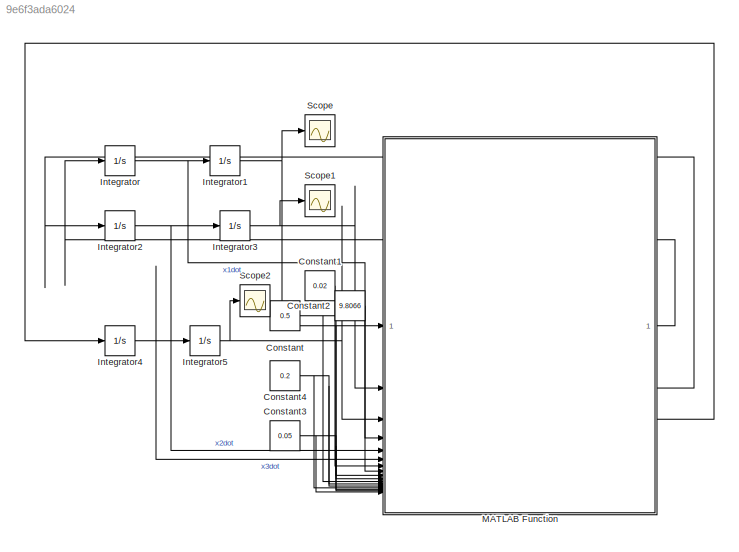
MODEL slx_9e6f3ada6024
KIND model
CONFIG AbsTol = auto
CONFIG EnableMultiTasking = off
CONFIG FixedStep = auto
CONFIG MaxStep = auto
CONFIG MinStep = auto
CONFIG RelTol = 1e-3
CONFIG SampleTimeConstraint = Unconstrained
CONFIG SolverName = VariableStepAuto
CONFIG StartTime = 0.0
CONFIG StopTime = 10.0
BLOCK [Constant] Constant
  Value = 0.5
BLOCK [Constant] Constant1
  Value = 0.02
BLOCK [Constant] Constant2
  Value = 9.8066
BLOCK [Constant] Constant3
  Value = 0.05
BLOCK [Constant] Constant4
  Value = 0.2
BLOCK [Integrator] Integrator
BLOCK [Integrator] Integrator1
BLOCK [Integrator] Integrator2
BLOCK [Integrator] Integrator3
BLOCK [Integrator] Integrator4
BLOCK [Integrator] Integrator5
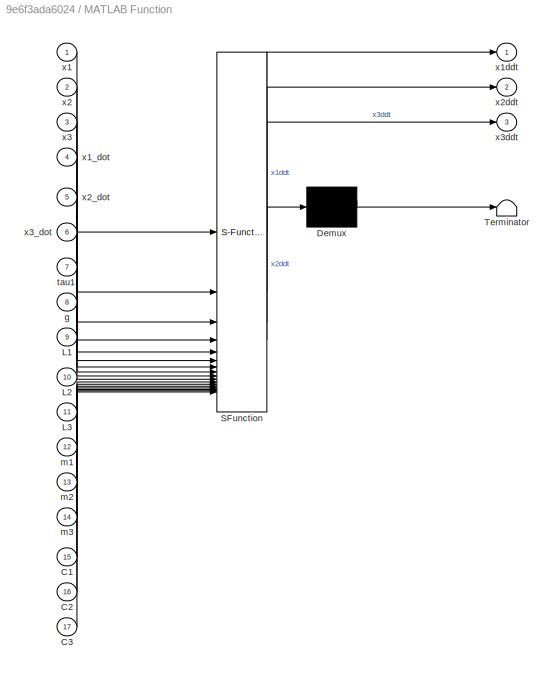
BLOCK [SubSystem] MATLAB Function
  ErrorFcn = Stateflow.Translate.translate
  PermitHierarchicalResolution = ExplicitOnly
  SFBlockType = MATLAB Function
  TreatAsAtomicUnit = on
BLOCK [Demux] MATLAB Function/ Demux 
  Outputs = 1
BLOCK [S-Function] MATLAB Function/ SFunction 
  EnableBusSupport = on
  FunctionName = sf_sfun
  PortCounts = [17 4]
  SFcnIsStateOwnerBlock = off
  SFunctionDeploymentMode = off
  Tag = Stateflow S-Function 2
BLOCK [Terminator] MATLAB Function/ Terminator 
BLOCK [Inport] MATLAB Function/C1
  Port = 15
BLOCK [Inport] MATLAB Function/C2
  Port = 16
BLOCK [Inport] MATLAB Function/C3
  Port = 17
BLOCK [Inport] MATLAB Function/L1
  Port = 9
BLOCK [Inport] MATLAB Function/L2
  Port = 10
BLOCK [Inport] MATLAB Function/L3
  Port = 11
BLOCK [Inport] MATLAB Function/g
  Port = 8
BLOCK [Inport] MATLAB Function/m1
  Port = 12
BLOCK [Inport] MATLAB Function/m2
  Port = 13
BLOCK [Inport] MATLAB Function/m3
  Port = 14
BLOCK [Inport] MATLAB Function/tau1
  Port = 7
BLOCK [Inport] MATLAB Function/x1
BLOCK [Inport] MATLAB Function/x1_dot
  Port = 4
BLOCK [Outport] MATLAB Function/x1ddt
BLOCK [Inport] MATLAB Function/x2
  Port = 2
BLOCK [Inport] MATLAB Function/x2_dot
  Port = 5
BLOCK [Outport] MATLAB Function/x2ddt
  Port = 2
BLOCK [Inport] MATLAB Function/x3
  Port = 3
BLOCK [Inport] MATLAB Function/x3_dot
  Port = 6
BLOCK [Outport] MATLAB Function/x3ddt
  Port = 3
BLOCK [Scope] Scope
  Floating = off
  NumInputPorts = 1
  ScopeSpecificationString = Simulink.scopes.TimeScopeBlockCfg('CurrentConfiguration', extmgr.ConfigurationSet(extmgr.Configuration('Core','General UI',true),extmgr.Configuration('Core','Source UI',true),extmgr.Configuration('Sources','WiredSimulink',true,'DataLoggingSaveFormat','Array','DataLoggingLimitDataPoints',true,'DataLoggingDecimation','1'),extmgr.Configuration('Visuals','Time Domain',true,'SerializedDisplays',{struct...<+1610ch>
BLOCK [Scope] Scope1
  Floating = off
  NumInputPorts = 1
  ScopeSpecificationString = Simulink.scopes.TimeScopeBlockCfg('CurrentConfiguration', extmgr.ConfigurationSet(extmgr.Configuration('Core','General UI',true),extmgr.Configuration('Core','Source UI',true),extmgr.Configuration('Sources','WiredSimulink',true,'DataLoggingSaveFormat','Array','DataLoggingLimitDataPoints',true,'DataLoggingDecimation','1','DataLoggingVariableName','ScopeData1'),extmgr.Configuration('Visuals','Time Do...<+1643ch>
BLOCK [Scope] Scope2
  Floating = off
  NumInputPorts = 1
  ScopeSpecificationString = Simulink.scopes.TimeScopeBlockCfg('CurrentConfiguration', extmgr.ConfigurationSet(extmgr.Configuration('Core','General UI',true),extmgr.Configuration('Core','Source UI',true),extmgr.Configuration('Sources','WiredSimulink',true,'DataLoggingSaveFormat','Array','DataLoggingLimitDataPoints',true,'DataLoggingDecimation','1','DataLoggingVariableName','ScopeData2'),extmgr.Configuration('Visuals','Time Do...<+1641ch>
LINE Constant1:1 -> MATLAB Function:7
LINE Constant2:1 -> MATLAB Function:8
NET Constant3:1 -> MATLAB Function:15, MATLAB Function:16, MATLAB Function:17
NET Constant4:1 -> MATLAB Function:12, MATLAB Function:13, MATLAB Function:14
NET Constant:1 -> MATLAB Function:10, MATLAB Function:11, MATLAB Function:9
NET Integrator1:1 -> MATLAB Function:1, Scope:1
NET Integrator2:1 -> Integrator3:1, MATLAB Function:5
NET Integrator3:1 -> MATLAB Function:2, Scope1:1
NET Integrator4:1 -> Integrator5:1, MATLAB Function:6
NET Integrator5:1 -> MATLAB Function:3, Scope2:1
NET Integrator:1 -> Integrator1:1, MATLAB Function:4
LINE MATLAB Function:1 -> Integrator:1
LINE MATLAB Function:2 -> Integrator2:1
LINE MATLAB Function:3 -> Integrator4:1
note: NET lines group one-source signal fan-out (src -> all destinations, sorted); 1:1 wires keep LINE
CHART MATLAB Function states=1 transitions=1
  STATE_LABEL 'eML_blk_kernel()'
  STATE_LABEL 'SCRIPT:\nfunction [x1ddt,x2ddt,x3ddt] = fcn(x1,x2,x3,x1_dot,x2_dot,x3_dot,tau1,g,L1,L2,L3,m1,m2,m3,C1,C2,C3)\n\nI1=(m1/12)*L1*L1;\nI2=(m2/12)*L2*L2;\nI3=(m3/12)*L3*L3;\n\nd11=I1 + I2/2 + I3/2 - (I3*cos(2*x2 + 2*x3))/2 + (L1^2*m1)/4 + L1^2*m2 + L1^2*m3 + (L2^2*m2)/8 + (L2^2*m3)/2 + (L3^2*m3)/8 - (I2*cos(2*x2))/2 - (L2^2*m2*cos(2*x2))/8 - (L2^2*m3*cos(2*x2))/2 - (L3^2*m3*cos(2*x2 + 2*x3))/8 + (L2*L3*m3*cos...<+1703ch>'
CHART  states=0 transitions=0
